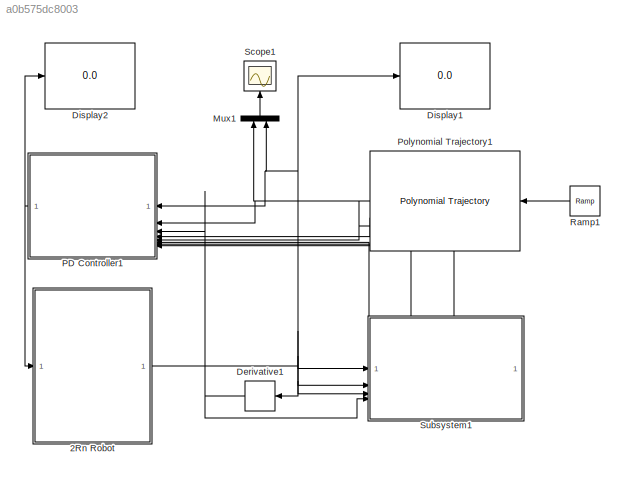
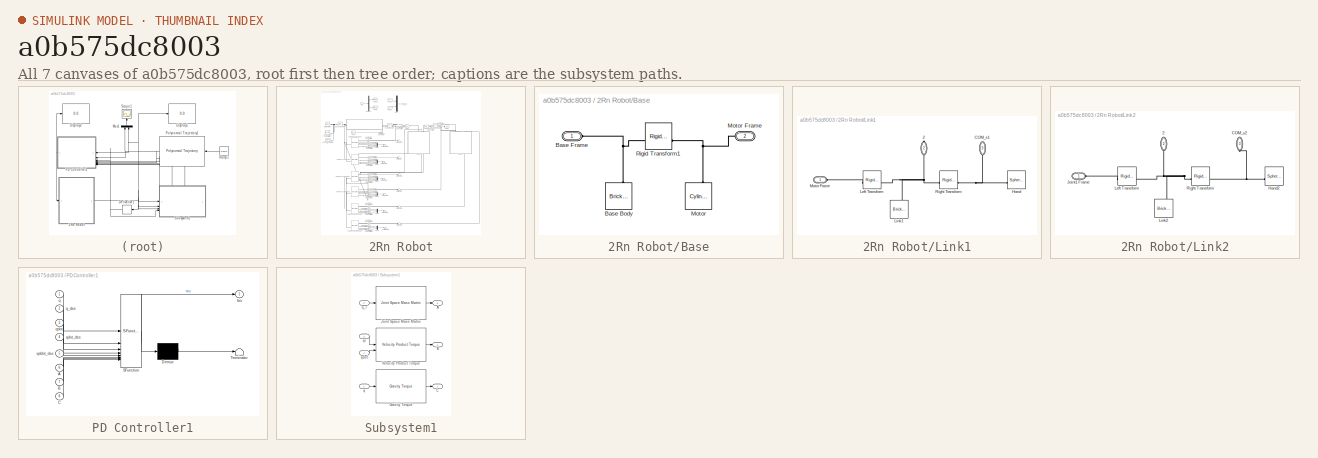
[diagram: thumbnail index - all 7 canvases of the model, root first then tree order]
MODEL slx_a0b575dc8003
KIND model
CONFIG AbsTol = auto
CONFIG EnableMultiTasking = off
CONFIG FixedStep = auto
CONFIG MaxStep = auto
CONFIG MinStep = auto
CONFIG RelTol = 1e-3
CONFIG SampleTimeConstraint = Unconstrained
CONFIG SolverName = VariableStepAuto
CONFIG StartTime = 0.0
CONFIG StopTime = 20
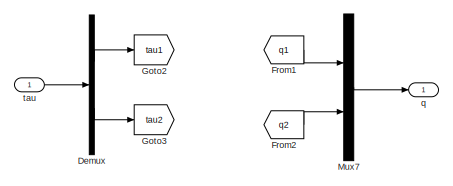
[diagram: 2Rn Robot - part 1/4, top center region]
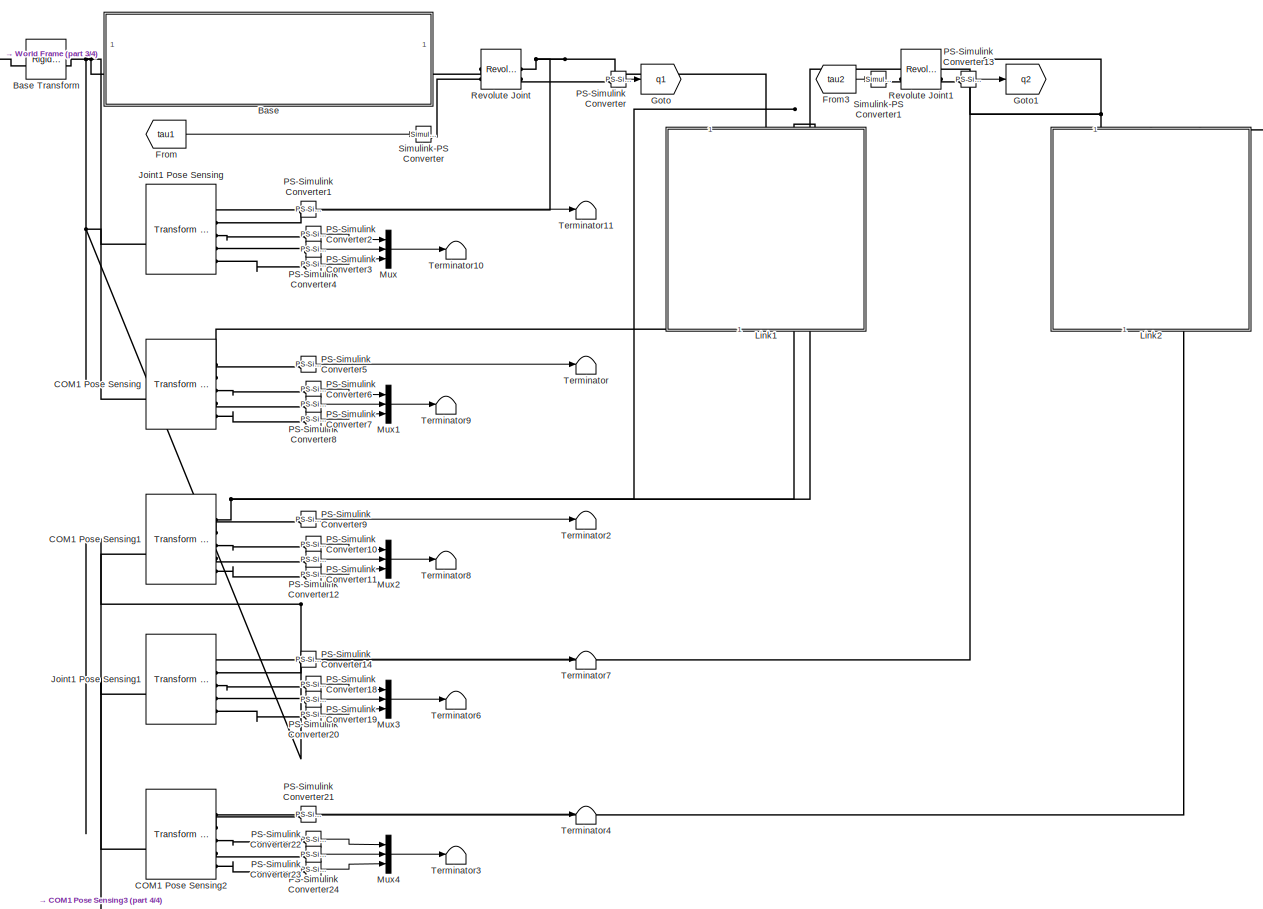
[diagram: 2Rn Robot - part 2/4, full width, middle band]
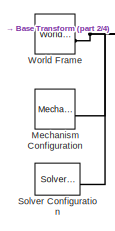
[diagram: 2Rn Robot - part 3/4, top left region]
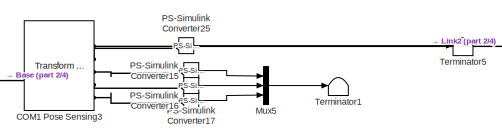
[diagram: 2Rn Robot - part 4/4, bottom center region]
BLOCK [SubSystem] 2Rn Robot
BLOCK [SubSystem] 2Rn Robot/Base
BLOCK [Reference] 2Rn Robot/Base Transform  REF=sm_lib/Frames and
Transforms/Rigid
Transform
  SourceBlock = sm_lib/Frames and\nTransforms/Rigid\nTransform
  SourceType = Rigid\nTransform
BLOCK [Reference] 2Rn Robot/Base/Base Body  REF=sm_lib/Body Elements/Brick Solid
  NameLocation = right
  SourceBlock = sm_lib/Body Elements/Brick Solid
  SourceType = Brick Solid
BLOCK [PMIOPort] 2Rn Robot/Base/Base Frame
  Side = Left
BLOCK [Reference] 2Rn Robot/Base/Motor  REF=sm_lib/Body Elements/Cylindrical Solid
  NameLocation = right
  SourceBlock = sm_lib/Body Elements/Cylindrical Solid
  SourceType = Cylindrical Solid
BLOCK [PMIOPort] 2Rn Robot/Base/Motor Frame
  Port = 2
  Side = Right
BLOCK [Reference] 2Rn Robot/Base/Rigid Transform1  REF=sm_lib/Frames and
Transforms/Rigid
Transform
  SourceBlock = sm_lib/Frames and\nTransforms/Rigid\nTransform
  SourceType = Rigid\nTransform
BLOCK [Reference] 2Rn Robot/COM1 Pose Sensing  REF=sm_lib/Frames and
Transforms/Transform
Sensor
  SourceBlock = sm_lib/Frames and\nTransforms/Transform\nSensor
  SourceType = Transform\nSensor
BLOCK [Reference] 2Rn Robot/COM1 Pose Sensing1  REF=sm_lib/Frames and
Transforms/Transform
Sensor
  SourceBlock = sm_lib/Frames and\nTransforms/Transform\nSensor
  SourceType = Transform\nSensor
BLOCK [Reference] 2Rn Robot/COM1 Pose Sensing2  REF=sm_lib/Frames and
Transforms/Transform
Sensor
  SourceBlock = sm_lib/Frames and\nTransforms/Transform\nSensor
  SourceType = Transform\nSensor
BLOCK [Reference] 2Rn Robot/COM1 Pose Sensing3  REF=sm_lib/Frames and
Transforms/Transform
Sensor
  SourceBlock = sm_lib/Frames and\nTransforms/Transform\nSensor
  SourceType = Transform\nSensor
BLOCK [Demux] 2Rn Robot/Demux
  Outputs = 2
BLOCK [From] 2Rn Robot/From
  GotoTag = tau1
BLOCK [From] 2Rn Robot/From1
  GotoTag = q1
BLOCK [From] 2Rn Robot/From2
  GotoTag = q2
BLOCK [From] 2Rn Robot/From3
  GotoTag = tau2
BLOCK [Goto] 2Rn Robot/Goto
  GotoTag = q1
BLOCK [Goto] 2Rn Robot/Goto1
  GotoTag = q2
BLOCK [Goto] 2Rn Robot/Goto2
  GotoTag = tau1
BLOCK [Goto] 2Rn Robot/Goto3
  GotoTag = tau2
BLOCK [Reference] 2Rn Robot/Joint1 Pose Sensing  REF=sm_lib/Frames and
Transforms/Transform
Sensor
  SourceBlock = sm_lib/Frames and\nTransforms/Transform\nSensor
  SourceType = Transform\nSensor
BLOCK [Reference] 2Rn Robot/Joint1 Pose Sensing1  REF=sm_lib/Frames and
Transforms/Transform
Sensor
  SourceBlock = sm_lib/Frames and\nTransforms/Transform\nSensor
  SourceType = Transform\nSensor
BLOCK [SubSystem] 2Rn Robot/Link1
  NameLocation = left
BLOCK [PMIOPort] 2Rn Robot/Link1/2
  NameLocation = right
  Port = 2
  Side = Right
BLOCK [PMIOPort] 2Rn Robot/Link1/COM_s1
  NameLocation = right
  Port = 3
  Side = Left
BLOCK [Reference] 2Rn Robot/Link1/Hand  REF=sm_lib/Body Elements/Spherical Solid
  NameLocation = top
  SourceBlock = sm_lib/Body Elements/Spherical Solid
  SourceType = Spherical Solid
BLOCK [Reference] 2Rn Robot/Link1/Left Transform  REF=sm_lib/Frames and
Transforms/Rigid
Transform
  NameLocation = top
  SourceBlock = sm_lib/Frames and\nTransforms/Rigid\nTransform
  SourceType = Rigid\nTransform
BLOCK [Reference] 2Rn Robot/Link1/Link1  REF=sm_lib/Body Elements/Brick Solid
  NameLocation = right
  SourceBlock = sm_lib/Body Elements/Brick Solid
  SourceType = Brick Solid
BLOCK [PMIOPort] 2Rn Robot/Link1/Motor Frame
  Side = Left
BLOCK [Reference] 2Rn Robot/Link1/Right Transform  REF=sm_lib/Frames and
Transforms/Rigid
Transform
  SourceBlock = sm_lib/Frames and\nTransforms/Rigid\nTransform
  SourceType = Rigid\nTransform
BLOCK [SubSystem] 2Rn Robot/Link2
  NameLocation = left
BLOCK [PMIOPort] 2Rn Robot/Link2/2
  NameLocation = right
  Port = 2
  Side = Right
BLOCK [PMIOPort] 2Rn Robot/Link2/COM_s2
  NameLocation = right
  Port = 3
  Side = Left
BLOCK [Reference] 2Rn Robot/Link2/Hand2  REF=sm_lib/Body Elements/Spherical Solid
  NameLocation = top
  SourceBlock = sm_lib/Body Elements/Spherical Solid
  SourceType = Spherical Solid
BLOCK [PMIOPort] 2Rn Robot/Link2/Joint1 Frame
  Side = Left
BLOCK [Reference] 2Rn Robot/Link2/Left Transform  REF=sm_lib/Frames and
Transforms/Rigid
Transform
  NameLocation = top
  SourceBlock = sm_lib/Frames and\nTransforms/Rigid\nTransform
  SourceType = Rigid\nTransform
BLOCK [Reference] 2Rn Robot/Link2/Link2  REF=sm_lib/Body Elements/Brick Solid
  NameLocation = right
  SourceBlock = sm_lib/Body Elements/Brick Solid
  SourceType = Brick Solid
BLOCK [Reference] 2Rn Robot/Link2/Right Transform  REF=sm_lib/Frames and
Transforms/Rigid
Transform
  SourceBlock = sm_lib/Frames and\nTransforms/Rigid\nTransform
  SourceType = Rigid\nTransform
BLOCK [Reference] 2Rn Robot/Mechanism Configuration  REF=sm_lib/Utilities/Mechanism
Configuration
  SourceBlock = sm_lib/Utilities/Mechanism\nConfiguration
  SourceType = Mechanism\nConfiguration
BLOCK [Mux] 2Rn Robot/Mux
  DisplayOption = bar
  Inputs = 3
BLOCK [Mux] 2Rn Robot/Mux1
  DisplayOption = bar
  Inputs = 3
BLOCK [Mux] 2Rn Robot/Mux2
  DisplayOption = bar
  Inputs = 3
BLOCK [Mux] 2Rn Robot/Mux3
  DisplayOption = bar
  Inputs = 3
BLOCK [Mux] 2Rn Robot/Mux4
  DisplayOption = bar
  Inputs = 3
BLOCK [Mux] 2Rn Robot/Mux5
  DisplayOption = bar
  Inputs = 3
BLOCK [Mux] 2Rn Robot/Mux7
  DisplayOption = bar
  Inputs = 2
BLOCK [Reference] 2Rn Robot/PS-Simulink Converter  REF=nesl_utility/PS-Simulink
Converter
  SourceBlock = nesl_utility/PS-Simulink\nConverter
  SourceType = PS-Simulink\nConverter
BLOCK [Reference] 2Rn Robot/PS-Simulink Converter1  REF=nesl_utility/PS-Simulink
Converter
  SourceBlock = nesl_utility/PS-Simulink\nConverter
  SourceType = PS-Simulink\nConverter
BLOCK [Reference] 2Rn Robot/PS-Simulink Converter10  REF=nesl_utility/PS-Simulink
Converter
  SourceBlock = nesl_utility/PS-Simulink\nConverter
  SourceType = PS-Simulink\nConverter
BLOCK [Reference] 2Rn Robot/PS-Simulink Converter11  REF=nesl_utility/PS-Simulink
Converter
  SourceBlock = nesl_utility/PS-Simulink\nConverter
  SourceType = PS-Simulink\nConverter
BLOCK [Reference] 2Rn Robot/PS-Simulink Converter12  REF=nesl_utility/PS-Simulink
Converter
  SourceBlock = nesl_utility/PS-Simulink\nConverter
  SourceType = PS-Simulink\nConverter
BLOCK [Reference] 2Rn Robot/PS-Simulink Converter13  REF=nesl_utility/PS-Simulink
Converter
  SourceBlock = nesl_utility/PS-Simulink\nConverter
  SourceType = PS-Simulink\nConverter
BLOCK [Reference] 2Rn Robot/PS-Simulink Converter14  REF=nesl_utility/PS-Simulink
Converter
  SourceBlock = nesl_utility/PS-Simulink\nConverter
  SourceType = PS-Simulink\nConverter
BLOCK [Reference] 2Rn Robot/PS-Simulink Converter15  REF=nesl_utility/PS-Simulink
Converter
  SourceBlock = nesl_utility/PS-Simulink\nConverter
  SourceType = PS-Simulink\nConverter
BLOCK [Reference] 2Rn Robot/PS-Simulink Converter16  REF=nesl_utility/PS-Simulink
Converter
  SourceBlock = nesl_utility/PS-Simulink\nConverter
  SourceType = PS-Simulink\nConverter
BLOCK [Reference] 2Rn Robot/PS-Simulink Converter17  REF=nesl_utility/PS-Simulink
Converter
  SourceBlock = nesl_utility/PS-Simulink\nConverter
  SourceType = PS-Simulink\nConverter
BLOCK [Reference] 2Rn Robot/PS-Simulink Converter18  REF=nesl_utility/PS-Simulink
Converter
  SourceBlock = nesl_utility/PS-Simulink\nConverter
  SourceType = PS-Simulink\nConverter
BLOCK [Reference] 2Rn Robot/PS-Simulink Converter19  REF=nesl_utility/PS-Simulink
Converter
  SourceBlock = nesl_utility/PS-Simulink\nConverter
  SourceType = PS-Simulink\nConverter
BLOCK [Reference] 2Rn Robot/PS-Simulink Converter2  REF=nesl_utility/PS-Simulink
Converter
  SourceBlock = nesl_utility/PS-Simulink\nConverter
  SourceType = PS-Simulink\nConverter
BLOCK [Reference] 2Rn Robot/PS-Simulink Converter20  REF=nesl_utility/PS-Simulink
Converter
  SourceBlock = nesl_utility/PS-Simulink\nConverter
  SourceType = PS-Simulink\nConverter
BLOCK [Reference] 2Rn Robot/PS-Simulink Converter21  REF=nesl_utility/PS-Simulink
Converter
  SourceBlock = nesl_utility/PS-Simulink\nConverter
  SourceType = PS-Simulink\nConverter
BLOCK [Reference] 2Rn Robot/PS-Simulink Converter22  REF=nesl_utility/PS-Simulink
Converter
  SourceBlock = nesl_utility/PS-Simulink\nConverter
  SourceType = PS-Simulink\nConverter
BLOCK [Reference] 2Rn Robot/PS-Simulink Converter23  REF=nesl_utility/PS-Simulink
Converter
  SourceBlock = nesl_utility/PS-Simulink\nConverter
  SourceType = PS-Simulink\nConverter
BLOCK [Reference] 2Rn Robot/PS-Simulink Converter24  REF=nesl_utility/PS-Simulink
Converter
  SourceBlock = nesl_utility/PS-Simulink\nConverter
  SourceType = PS-Simulink\nConverter
BLOCK [Reference] 2Rn Robot/PS-Simulink Converter25  REF=nesl_utility/PS-Simulink
Converter
  SourceBlock = nesl_utility/PS-Simulink\nConverter
  SourceType = PS-Simulink\nConverter
BLOCK [Reference] 2Rn Robot/PS-Simulink Converter3  REF=nesl_utility/PS-Simulink
Converter
  SourceBlock = nesl_utility/PS-Simulink\nConverter
  SourceType = PS-Simulink\nConverter
BLOCK [Reference] 2Rn Robot/PS-Simulink Converter4  REF=nesl_utility/PS-Simulink
Converter
  SourceBlock = nesl_utility/PS-Simulink\nConverter
  SourceType = PS-Simulink\nConverter
BLOCK [Reference] 2Rn Robot/PS-Simulink Converter5  REF=nesl_utility/PS-Simulink
Converter
  SourceBlock = nesl_utility/PS-Simulink\nConverter
  SourceType = PS-Simulink\nConverter
BLOCK [Reference] 2Rn Robot/PS-Simulink Converter6  REF=nesl_utility/PS-Simulink
Converter
  SourceBlock = nesl_utility/PS-Simulink\nConverter
  SourceType = PS-Simulink\nConverter
BLOCK [Reference] 2Rn Robot/PS-Simulink Converter7  REF=nesl_utility/PS-Simulink
Converter
  SourceBlock = nesl_utility/PS-Simulink\nConverter
  SourceType = PS-Simulink\nConverter
BLOCK [Reference] 2Rn Robot/PS-Simulink Converter8  REF=nesl_utility/PS-Simulink
Converter
  SourceBlock = nesl_utility/PS-Simulink\nConverter
  SourceType = PS-Simulink\nConverter
BLOCK [Reference] 2Rn Robot/PS-Simulink Converter9  REF=nesl_utility/PS-Simulink
Converter
  SourceBlock = nesl_utility/PS-Simulink\nConverter
  SourceType = PS-Simulink\nConverter
BLOCK [Reference] 2Rn Robot/Revolute Joint  REF=sm_lib/Joints/Revolute Joint
  SourceBlock = sm_lib/Joints/Revolute Joint
  SourceType = Revolute Joint
BLOCK [Reference] 2Rn Robot/Revolute Joint1  REF=sm_lib/Joints/Revolute Joint
  SourceBlock = sm_lib/Joints/Revolute Joint
  SourceType = Revolute Joint
BLOCK [Reference] 2Rn Robot/Simulink-PS Converter  REF=nesl_utility/Simulink-PS
Converter
  SourceBlock = nesl_utility/Simulink-PS\nConverter
  SourceType = Simulink-PS\nConverter
BLOCK [Reference] 2Rn Robot/Simulink-PS Converter1  REF=nesl_utility/Simulink-PS
Converter
  SourceBlock = nesl_utility/Simulink-PS\nConverter
  SourceType = Simulink-PS\nConverter
BLOCK [Reference] 2Rn Robot/Solver Configuration  REF=nesl_utility/Solver
Configuration
  SourceBlock = nesl_utility/Solver\nConfiguration
  SourceType = Solver\nConfiguration
BLOCK [Terminator] 2Rn Robot/Terminator
BLOCK [Terminator] 2Rn Robot/Terminator1
BLOCK [Terminator] 2Rn Robot/Terminator10
BLOCK [Terminator] 2Rn Robot/Terminator11
BLOCK [Terminator] 2Rn Robot/Terminator2
BLOCK [Terminator] 2Rn Robot/Terminator3
BLOCK [Terminator] 2Rn Robot/Terminator4
BLOCK [Terminator] 2Rn Robot/Terminator5
BLOCK [Terminator] 2Rn Robot/Terminator6
BLOCK [Terminator] 2Rn Robot/Terminator7
BLOCK [Terminator] 2Rn Robot/Terminator8
BLOCK [Terminator] 2Rn Robot/Terminator9
BLOCK [Reference] 2Rn Robot/World Frame  REF=sm_lib/Frames and
Transforms/World Frame
  SourceBlock = sm_lib/Frames and\nTransforms/World Frame
  SourceType = World Frame
BLOCK [Outport] 2Rn Robot/q
BLOCK [Inport] 2Rn Robot/tau
BLOCK [Derivative] Derivative1
  NameLocation = top
BLOCK [Display] Display1
  Decimation = 1
BLOCK [Display] Display2
  Decimation = 1
BLOCK [Mux] Mux1
  DisplayOption = bar
  Inputs = 2
  NameLocation = right
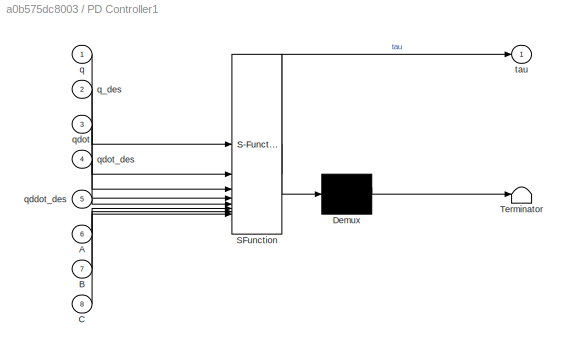
BLOCK [SubSystem] PD Controller1
  ErrorFcn = Stateflow.Translate.translate
  NameLocation = top
  PermitHierarchicalResolution = ExplicitOnly
  SFBlockType = MATLAB Function
  TreatAsAtomicUnit = on
BLOCK [Demux] PD Controller1/ Demux 
  Outputs = 1
BLOCK [S-Function] PD Controller1/ SFunction 
  EnableBusSupport = on
  FunctionName = sf_sfun
  PortCounts = [8 2]
  SFcnIsStateOwnerBlock = off
  SFunctionDeploymentMode = off
  Tag = Stateflow S-Function 1
BLOCK [Terminator] PD Controller1/ Terminator 
BLOCK [Inport] PD Controller1/A
  Port = 6
BLOCK [Inport] PD Controller1/B
  Port = 7
BLOCK [Inport] PD Controller1/C
  Port = 8
BLOCK [Inport] PD Controller1/q
BLOCK [Inport] PD Controller1/q_des
  Port = 2
BLOCK [Inport] PD Controller1/qddot_des
  Port = 5
BLOCK [Inport] PD Controller1/qdot
  Port = 3
BLOCK [Inport] PD Controller1/qdot_des
  Port = 4
BLOCK [Outport] PD Controller1/tau
  VectorParamsAs1DForOutWhenUnconnected = off
BLOCK [Reference] Polynomial Trajectory1  REF=robotcorelib/Polynomial Trajectory
  LibrarySourceBlock = robotutilslib/Polynomial Trajectory
  SourceBlock = robotcorelib/Polynomial Trajectory
  SourceType = robotics.slcore.internal.block.PolyTrajSys
BLOCK [Reference] Ramp1  REF=simulink/Sources/Ramp
  NameLocation = top
  SourceBlock = simulink/Sources/Ramp
  SourceType = Ramp
BLOCK [Scope] Scope1
  Floating = off
  NameLocation = right
  NumInputPorts = 1
  ScopeSpecificationString = Simulink.scopes.TimeScopeBlockCfg('CurrentConfiguration', extmgr.ConfigurationSet(extmgr.Configuration('Core','General UI',true),extmgr.Configuration('Core','Source UI',true),extmgr.Configuration('Sources','WiredSimulink',true,'DataLoggingVariableName','ScopeData1'),extmgr.Configuration('Visuals','Time Domain',true,'SerializedDisplays',{struct('MinYLimReal','-0.00992','MaxYLimReal','2.64676','YLab...<+1519ch>
BLOCK [SubSystem] Subsystem1
  PortSchema = {"entries":[{"content":{"sides":[{"content":{"connectorIds":["In1","In2","In3","In4"]},"type":"ConnectorPlacement.EquallySpacedRectSide","uuid":"44d897c1-82a3-425b-9962-2419700977c6"},{"content":{"side":"RIGHT"},"type":"ConnectorPlacement.EquallySpacedRectSide","uuid":"002e42de-9539-491d-a5fe-d4b2bbafded6"},{"content":{"connectorIds":["Out1","Out2","Out3"],"side":"TOP"},"type":"ConnectorPlacement....<+254ch>
BLOCK [Outport] Subsystem1/A
  Port = 3
BLOCK [Outport] Subsystem1/B
  Port = 2
BLOCK [Outport] Subsystem1/C
BLOCK [Reference] Subsystem1/Gravity Torque  REF=robotmaniplib/Gravity Torque
  SourceBlock = robotmaniplib/Gravity Torque
  SourceType = Gravity Torque
BLOCK [Reference] Subsystem1/Joint Space Mass Matrix  REF=robotmaniplib/Joint Space Mass Matrix
  SourceBlock = robotmaniplib/Joint Space Mass Matrix
  SourceType = Joint Space Mass Matrix
BLOCK [Reference] Subsystem1/Velocity Product Torque  REF=robotmaniplib/Velocity Product Torque
  SourceBlock = robotmaniplib/Velocity Product Torque
  SourceType = Velocity Product Torque
BLOCK [Inport] Subsystem1/q
BLOCK [Inport] Subsystem1/q_r
  Port = 2
BLOCK [Inport] Subsystem1/qdot
  Port = 4
BLOCK [Inport] Subsystem1/qr
  Port = 3
LINE 2Rn Robot/Demux:1 -> 2Rn Robot/Goto2:1
LINE 2Rn Robot/Demux:2 -> 2Rn Robot/Goto3:1
LINE 2Rn Robot/From1:1 -> 2Rn Robot/Mux7:1
LINE 2Rn Robot/From2:1 -> 2Rn Robot/Mux7:2
LINE 2Rn Robot/From3:1 -> 2Rn Robot/Simulink-PS Converter1:1
LINE 2Rn Robot/From:1 -> 2Rn Robot/Simulink-PS Converter:1
LINE 2Rn Robot/Mux1:1 -> 2Rn Robot/Terminator9:1
LINE 2Rn Robot/Mux2:1 -> 2Rn Robot/Terminator8:1
LINE 2Rn Robot/Mux3:1 -> 2Rn Robot/Terminator6:1
LINE 2Rn Robot/Mux4:1 -> 2Rn Robot/Terminator3:1
LINE 2Rn Robot/Mux5:1 -> 2Rn Robot/Terminator1:1
LINE 2Rn Robot/Mux7:1 -> 2Rn Robot/q:1
LINE 2Rn Robot/Mux:1 -> 2Rn Robot/Terminator10:1
LINE 2Rn Robot/PS-Simulink Converter10:1 -> 2Rn Robot/Mux2:1
LINE 2Rn Robot/PS-Simulink Converter11:1 -> 2Rn Robot/Mux2:3
LINE 2Rn Robot/PS-Simulink Converter12:1 -> 2Rn Robot/Mux2:2
LINE 2Rn Robot/PS-Simulink Converter13:1 -> 2Rn Robot/Goto1:1
LINE 2Rn Robot/PS-Simulink Converter14:1 -> 2Rn Robot/Terminator7:1
LINE 2Rn Robot/PS-Simulink Converter15:1 -> 2Rn Robot/Mux5:1
LINE 2Rn Robot/PS-Simulink Converter16:1 -> 2Rn Robot/Mux5:3
LINE 2Rn Robot/PS-Simulink Converter17:1 -> 2Rn Robot/Mux5:2
LINE 2Rn Robot/PS-Simulink Converter18:1 -> 2Rn Robot/Mux3:1
LINE 2Rn Robot/PS-Simulink Converter19:1 -> 2Rn Robot/Mux3:3
LINE 2Rn Robot/PS-Simulink Converter1:1 -> 2Rn Robot/Terminator11:1
LINE 2Rn Robot/PS-Simulink Converter20:1 -> 2Rn Robot/Mux3:2
LINE 2Rn Robot/PS-Simulink Converter21:1 -> 2Rn Robot/Terminator4:1
LINE 2Rn Robot/PS-Simulink Converter22:1 -> 2Rn Robot/Mux4:1
LINE 2Rn Robot/PS-Simulink Converter23:1 -> 2Rn Robot/Mux4:3
LINE 2Rn Robot/PS-Simulink Converter24:1 -> 2Rn Robot/Mux4:2
LINE 2Rn Robot/PS-Simulink Converter25:1 -> 2Rn Robot/Terminator5:1
LINE 2Rn Robot/PS-Simulink Converter2:1 -> 2Rn Robot/Mux:1
LINE 2Rn Robot/PS-Simulink Converter3:1 -> 2Rn Robot/Mux:3
LINE 2Rn Robot/PS-Simulink Converter4:1 -> 2Rn Robot/Mux:2
LINE 2Rn Robot/PS-Simulink Converter5:1 -> 2Rn Robot/Terminator:1
LINE 2Rn Robot/PS-Simulink Converter6:1 -> 2Rn Robot/Mux1:1
LINE 2Rn Robot/PS-Simulink Converter7:1 -> 2Rn Robot/Mux1:3
LINE 2Rn Robot/PS-Simulink Converter8:1 -> 2Rn Robot/Mux1:2
LINE 2Rn Robot/PS-Simulink Converter9:1 -> 2Rn Robot/Terminator2:1
LINE 2Rn Robot/PS-Simulink Converter:1 -> 2Rn Robot/Goto:1
LINE 2Rn Robot/tau:1 -> 2Rn Robot/Demux:1
NET 2Rn Robot:1 -> Derivative1:1, Display1:1, Mux1:2, PD Controller1:1, Subsystem1:1, Subsystem1:2, Subsystem1:3
NET Derivative1:1 -> PD Controller1:3, Subsystem1:4
LINE Mux1:1 -> Scope1:1
NET PD Controller1:1 -> 2Rn Robot:1, Display2:1
NET Polynomial Trajectory1:1 -> Mux1:1, PD Controller1:2
LINE Polynomial Trajectory1:2 -> PD Controller1:4
LINE Polynomial Trajectory1:3 -> PD Controller1:5
LINE Ramp1:1 -> Polynomial Trajectory1:1
LINE Subsystem1/Gravity Torque:1 -> Subsystem1/C:1
LINE Subsystem1/Joint Space Mass Matrix:1 -> Subsystem1/A:1
LINE Subsystem1/Velocity Product Torque:1 -> Subsystem1/B:1
LINE Subsystem1/q:1 -> Subsystem1/Gravity Torque:1
LINE Subsystem1/q_r:1 -> Subsystem1/Joint Space Mass Matrix:1
LINE Subsystem1/qdot:1 -> Subsystem1/Velocity Product Torque:2
LINE Subsystem1/qr:1 -> Subsystem1/Velocity Product Torque:1
LINE Subsystem1:1 -> PD Controller1:8
LINE Subsystem1:2 -> PD Controller1:7
LINE Subsystem1:3 -> PD Controller1:6
PNET net1: 2Rn Robot/Base Transform:LConn1 -- 2Rn Robot/Mechanism Configuration:RConn1 -- 2Rn Robot/Solver Configuration:RConn1 -- 2Rn Robot/World Frame:RConn1
PNET net2: 2Rn Robot/Base Transform:RConn1 -- 2Rn Robot/Base:LConn1 -- 2Rn Robot/COM1 Pose Sensing1:LConn1 -- 2Rn Robot/COM1 Pose Sensing2:LConn1 -- 2Rn Robot/COM1 Pose Sensing3:LConn1 -- 2Rn Robot/COM1 Pose Sensing:LConn1 -- 2Rn Robot/Joint1 Pose Sensing1:LConn1 -- 2Rn Robot/Joint1 Pose Sensing:LConn1
PNET net3: 2Rn Robot/Base/Base Body:RConn1 -- 2Rn Robot/Base/Base Frame:RConn1 -- 2Rn Robot/Base/Rigid Transform1:LConn1
PNET net4: 2Rn Robot/Base/Motor Frame:RConn1 -- 2Rn Robot/Base/Motor:RConn1 -- 2Rn Robot/Base/Rigid Transform1:RConn1
PLINE 2Rn Robot/Base:RConn1 -- 2Rn Robot/Revolute Joint:LConn1
PNET net5: 2Rn Robot/COM1 Pose Sensing1:RConn1 -- 2Rn Robot/Link1:LConn2 -- 2Rn Robot/Revolute Joint1:LConn1
PLINE 2Rn Robot/COM1 Pose Sensing1:RConn2 -- 2Rn Robot/PS-Simulink Converter9:LConn1
PLINE 2Rn Robot/COM1 Pose Sensing1:RConn3 -- 2Rn Robot/PS-Simulink Converter10:LConn1
PLINE 2Rn Robot/COM1 Pose Sensing1:RConn4 -- 2Rn Robot/PS-Simulink Converter12:LConn1
PLINE 2Rn Robot/COM1 Pose Sensing1:RConn5 -- 2Rn Robot/PS-Simulink Converter11:LConn1
PLINE 2Rn Robot/COM1 Pose Sensing2:RConn1 -- 2Rn Robot/Link2:RConn1
PLINE 2Rn Robot/COM1 Pose Sensing2:RConn2 -- 2Rn Robot/PS-Simulink Converter21:LConn1
PLINE 2Rn Robot/COM1 Pose Sensing2:RConn3 -- 2Rn Robot/PS-Simulink Converter22:LConn1
PLINE 2Rn Robot/COM1 Pose Sensing2:RConn4 -- 2Rn Robot/PS-Simulink Converter24:LConn1
PLINE 2Rn Robot/COM1 Pose Sensing2:RConn5 -- 2Rn Robot/PS-Simulink Converter23:LConn1
PLINE 2Rn Robot/COM1 Pose Sensing3:RConn1 -- 2Rn Robot/Link2:LConn2
PLINE 2Rn Robot/COM1 Pose Sensing3:RConn2 -- 2Rn Robot/PS-Simulink Converter25:LConn1
PLINE 2Rn Robot/COM1 Pose Sensing3:RConn3 -- 2Rn Robot/PS-Simulink Converter15:LConn1
PLINE 2Rn Robot/COM1 Pose Sensing3:RConn4 -- 2Rn Robot/PS-Simulink Converter17:LConn1
PLINE 2Rn Robot/COM1 Pose Sensing3:RConn5 -- 2Rn Robot/PS-Simulink Converter16:LConn1
PLINE 2Rn Robot/COM1 Pose Sensing:RConn1 -- 2Rn Robot/Link1:RConn1
PLINE 2Rn Robot/COM1 Pose Sensing:RConn2 -- 2Rn Robot/PS-Simulink Converter5:LConn1
PLINE 2Rn Robot/COM1 Pose Sensing:RConn3 -- 2Rn Robot/PS-Simulink Converter6:LConn1
PLINE 2Rn Robot/COM1 Pose Sensing:RConn4 -- 2Rn Robot/PS-Simulink Converter8:LConn1
PLINE 2Rn Robot/COM1 Pose Sensing:RConn5 -- 2Rn Robot/PS-Simulink Converter7:LConn1
PNET net6: 2Rn Robot/Joint1 Pose Sensing1:RConn1 -- 2Rn Robot/Link2:LConn1 -- 2Rn Robot/Revolute Joint1:RConn1
PLINE 2Rn Robot/Joint1 Pose Sensing1:RConn2 -- 2Rn Robot/PS-Simulink Converter14:LConn1
PLINE 2Rn Robot/Joint1 Pose Sensing1:RConn3 -- 2Rn Robot/PS-Simulink Converter18:LConn1
PLINE 2Rn Robot/Joint1 Pose Sensing1:RConn4 -- 2Rn Robot/PS-Simulink Converter20:LConn1
PLINE 2Rn Robot/Joint1 Pose Sensing1:RConn5 -- 2Rn Robot/PS-Simulink Converter19:LConn1
PNET net7: 2Rn Robot/Joint1 Pose Sensing:RConn1 -- 2Rn Robot/Link1:LConn1 -- 2Rn Robot/Revolute Joint:RConn1
PLINE 2Rn Robot/Joint1 Pose Sensing:RConn2 -- 2Rn Robot/PS-Simulink Converter1:LConn1
PLINE 2Rn Robot/Joint1 Pose Sensing:RConn3 -- 2Rn Robot/PS-Simulink Converter2:LConn1
PLINE 2Rn Robot/Joint1 Pose Sensing:RConn4 -- 2Rn Robot/PS-Simulink Converter4:LConn1
PLINE 2Rn Robot/Joint1 Pose Sensing:RConn5 -- 2Rn Robot/PS-Simulink Converter3:LConn1
PNET net8: 2Rn Robot/Link1/2:RConn1 -- 2Rn Robot/Link1/Left Transform:LConn1 -- 2Rn Robot/Link1/Link1:RConn1 -- 2Rn Robot/Link1/Right Transform:LConn1
PNET net9: 2Rn Robot/Link1/COM_s1:RConn1 -- 2Rn Robot/Link1/Hand:RConn1 -- 2Rn Robot/Link1/Right Transform:RConn1
PLINE 2Rn Robot/Link1/Left Transform:RConn1 -- 2Rn Robot/Link1/Motor Frame:RConn1
PNET net10: 2Rn Robot/Link2/2:RConn1 -- 2Rn Robot/Link2/Left Transform:LConn1 -- 2Rn Robot/Link2/Link2:RConn1 -- 2Rn Robot/Link2/Right Transform:LConn1
PNET net11: 2Rn Robot/Link2/COM_s2:RConn1 -- 2Rn Robot/Link2/Hand2:RConn1 -- 2Rn Robot/Link2/Right Transform:RConn1
PLINE 2Rn Robot/Link2/Joint1 Frame:RConn1 -- 2Rn Robot/Link2/Left Transform:RConn1
PLINE 2Rn Robot/PS-Simulink Converter13:LConn1 -- 2Rn Robot/Revolute Joint1:RConn2
PLINE 2Rn Robot/PS-Simulink Converter:LConn1 -- 2Rn Robot/Revolute Joint:RConn2
PLINE 2Rn Robot/Revolute Joint1:LConn2 -- 2Rn Robot/Simulink-PS Converter1:RConn1
PLINE 2Rn Robot/Revolute Joint:LConn2 -- 2Rn Robot/Simulink-PS Converter:RConn1
note: NET lines group one-source signal fan-out (src -> all destinations, sorted); 1:1 wires keep LINE; PNET lines group multi-terminal physical nets as a canonical sorted terminal list (undirected conserving connections); 2-terminal nets keep the pairwise PLINE form
CHART PD Controller1 states=1 transitions=1
  STATE_LABEL 'eML_blk_kernel()'
  STATE_LABEL 'SCRIPT:\nfunction tau = fcn(q, q_des, qdot, qdot_des, qddot_des ,A, B, C)\n\n    Kp = 100;\n    Kd = 15;\n    % tau = Kp*(q_des - q) - Kd*qdot + C;\n    tau = A * (qddot_des + Kp*(q_des - q) + Kd*(qdot_des - qdot)) + B + C;\n\nend\n'
CHART  states=0 transitions=0
